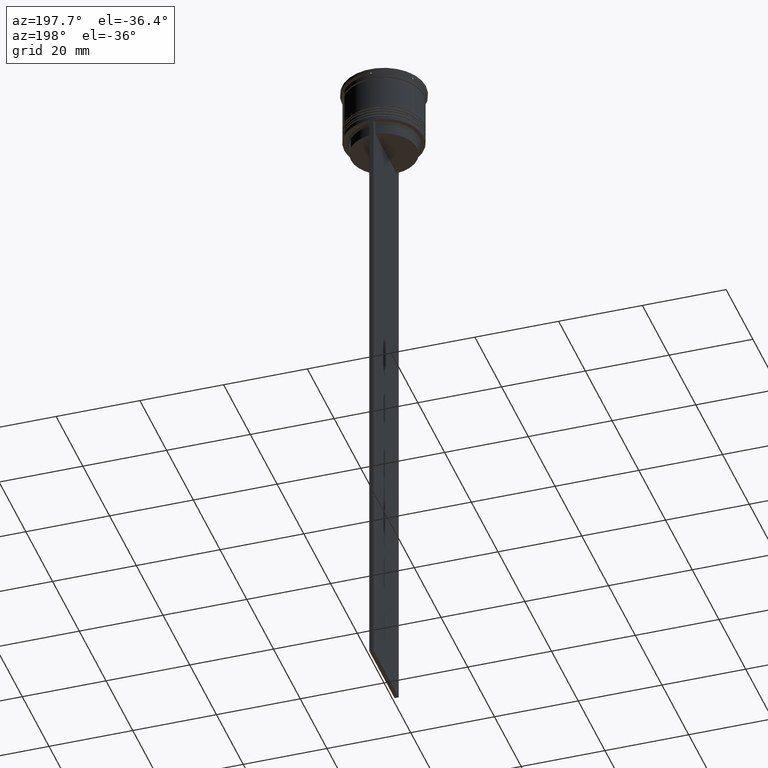
[diagram: clean part render]
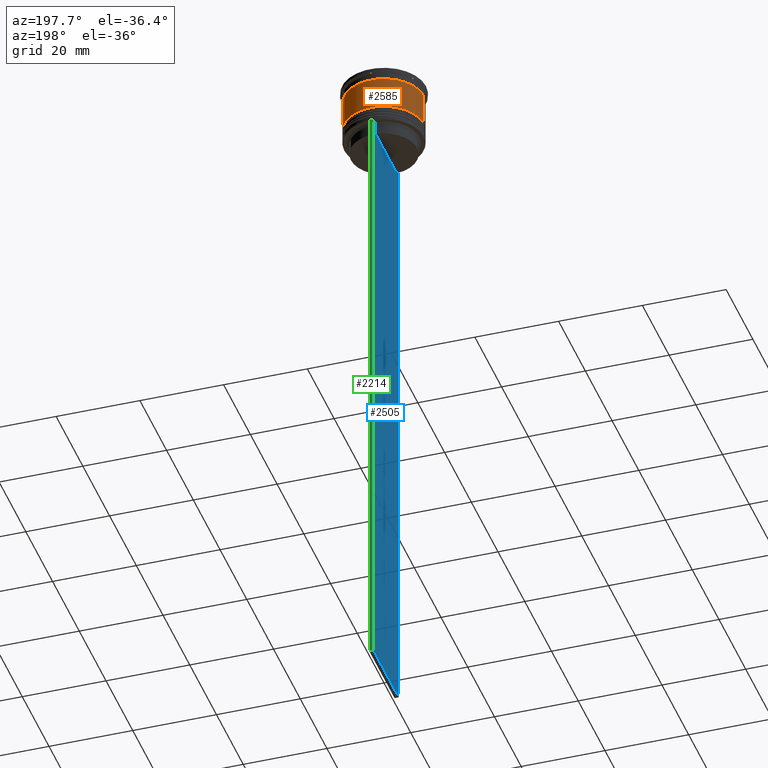
[diagram: same view with three faces highlighted in distinct colors, each labeled with its STEP entity id]
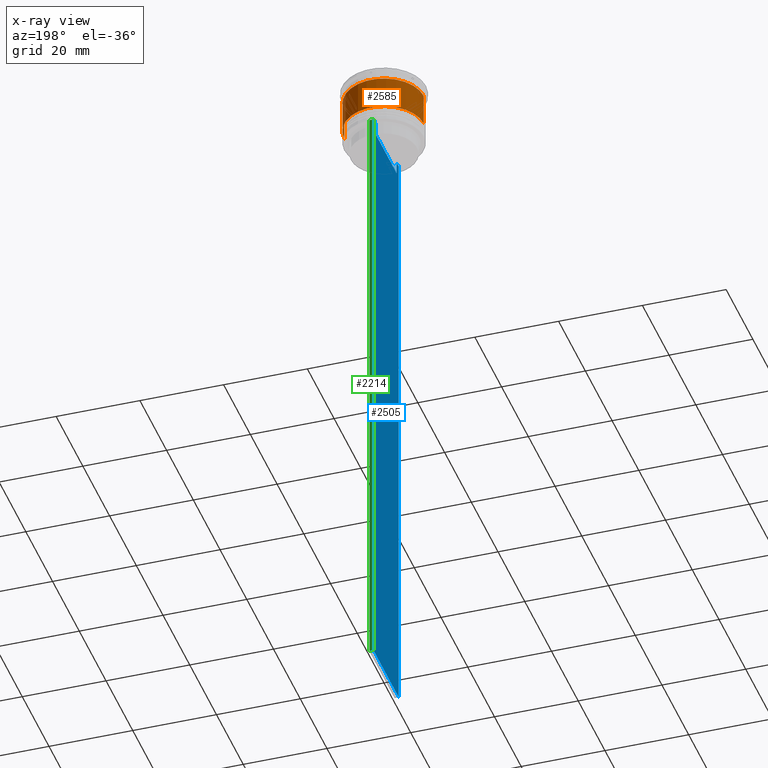
[diagram: x-ray of the same camera — body ghosted, the three highlighted faces saturated]
A machine part, auxiliary view with three faces highlighted in distinct colors.
The next image is the same camera in x-ray (body ghosted, the three faces saturated) — at least one of them is partly hidden behind the body in this view.
Their STEP definitions:

[orange] entity #2585 — the highlighted cylindrical surface (partial cylindrical patch) has radius 9.5 mm, axis along (-0, -0, 1).
#42 = DIRECTION ( 'NONE',  ( -0.000000000000000000, -0.000000000000000000, 1.000000000000000000 ) ) ;
#237 = VECTOR ( 'NONE', #1963, 1000.000000000000000 ) ;
#376 = CYLINDRICAL_SURFACE ( 'NONE', #1459, 9.500000000000000000 ) ;
#456 = AXIS2_PLACEMENT_3D ( 'NONE', #2632, #930, #1147 ) ;
#457 = ORIENTED_EDGE ( 'NONE', *, *, #1338, .F. ) ;
#519 = CARTESIAN_POINT ( 'NONE',  ( 9.500000000000001776, 0.000000000000000000, -10.50000000000000000 ) ) ;
#584 = CARTESIAN_POINT ( 'NONE',  ( -9.499999999999998224, 1.163414459189985485E-15, -2.700000000000001066 ) ) ;
#685 = LINE ( 'NONE', #1504, #2622 ) ;
#699 = CARTESIAN_POINT ( 'NONE',  ( 9.499999999999998224, 0.000000000000000000, -2.700000000000001066 ) ) ;
#775 = CIRCLE ( 'NONE', #456, 9.499999999999998224 ) ;
#795 = DIRECTION ( 'NONE',  ( -0.000000000000000000, -0.000000000000000000, 1.000000000000000000 ) ) ;
#856 = CARTESIAN_POINT ( 'NONE',  ( -9.500000000000001776, 1.163414459189985682E-15, -10.50000000000000000 ) ) ;
#908 = VERTEX_POINT ( 'NONE', #584 ) ;
#928 = EDGE_CURVE ( 'NONE', #2261, #908, #1167, .T. ) ;
#930 = DIRECTION ( 'NONE',  ( -0.000000000000000000, -0.000000000000000000, 1.000000000000000000 ) ) ;
#1085 = DIRECTION ( 'NONE',  ( 1.000000000000000000, 0.000000000000000000, 0.000000000000000000 ) ) ;
#1137 = CARTESIAN_POINT ( 'NONE',  ( -9.500000000000000000, 1.163414459189985485E-15, 0.000000000000000000 ) ) ;
#1147 = DIRECTION ( 'NONE',  ( 1.000000000000000000, 0.000000000000000000, 0.000000000000000000 ) ) ;
#1156 = ORIENTED_EDGE ( 'NONE', *, *, #1858, .T. ) ;
#1167 = LINE ( 'NONE', #1137, #237 ) ;
#1269 = CARTESIAN_POINT ( 'NONE',  ( 0.000000000000000000, 0.000000000000000000, -10.50000000000000000 ) ) ;
#1338 = EDGE_CURVE ( 'NONE', #1813, #908, #775, .T. ) ;
#1380 = DIRECTION ( 'NONE',  ( 1.000000000000000000, 0.000000000000000000, 0.000000000000000000 ) ) ;
#1459 = AXIS2_PLACEMENT_3D ( 'NONE', #2633, #795, #1380 ) ;
#1475 = ORIENTED_EDGE ( 'NONE', *, *, #1925, .F. ) ;
#1504 = CARTESIAN_POINT ( 'NONE',  ( 9.500000000000000000, 0.000000000000000000, 0.000000000000000000 ) ) ;
#1813 = VERTEX_POINT ( 'NONE', #699 ) ;
#1858 = EDGE_CURVE ( 'NONE', #2077, #2261, #2191, .T. ) ;
#1925 = EDGE_CURVE ( 'NONE', #2077, #1813, #685, .T. ) ;
#1963 = DIRECTION ( 'NONE',  ( -0.000000000000000000, -0.000000000000000000, 1.000000000000000000 ) ) ;
#2005 = ORIENTED_EDGE ( 'NONE', *, *, #928, .T. ) ;
#2077 = VERTEX_POINT ( 'NONE', #519 ) ;
#2183 = EDGE_LOOP ( 'NONE', ( #1156, #2005, #457, #1475 ) ) ;
#2191 = CIRCLE ( 'NONE', #2275, 9.500000000000001776 ) ;
#2261 = VERTEX_POINT ( 'NONE', #856 ) ;
#2275 = AXIS2_PLACEMENT_3D ( 'NONE', #1269, #42, #1085 ) ;
#2333 = DIRECTION ( 'NONE',  ( -0.000000000000000000, -0.000000000000000000, 1.000000000000000000 ) ) ;
#2410 = FACE_OUTER_BOUND ( 'NONE', #2183, .T. ) ;
#2585 = ADVANCED_FACE ( 'NONE', ( #2410 ), #376, .T. ) ;
#2622 = VECTOR ( 'NONE', #2333, 1000.000000000000000 ) ;
#2632 = CARTESIAN_POINT ( 'NONE',  ( 0.000000000000000000, 0.000000000000000000, -2.700000000000001066 ) ) ;
#2633 = CARTESIAN_POINT ( 'NONE',  ( 0.000000000000000000, 0.000000000000000000, 0.000000000000000000 ) ) ;

[blue] entity #2505 — the highlighted planar face has unit normal (-1, 0, 0).
#17 = CARTESIAN_POINT ( 'NONE',  ( -0.5000000000000000000, -8.051152795888546265, -14.33334334204685057 ) ) ;
#19 = LINE ( 'NONE', #1262, #508 ) ;
#43 = ORIENTED_EDGE ( 'NONE', *, *, #139, .F. ) ;
#49 = CARTESIAN_POINT ( 'NONE',  ( -0.5000000000000000000, -9.500000000000001776, 5.026297590440445440 ) ) ;
#61 = FACE_OUTER_BOUND ( 'NONE', #814, .T. ) ;
#97 = ORIENTED_EDGE ( 'NONE', *, *, #2335, .F. ) ;
#99 = VERTEX_POINT ( 'NONE', #2379 ) ;
#119 = DIRECTION ( 'NONE',  ( 0.000000000000000000, 0.000000000000000000, -1.000000000000000000 ) ) ;
#137 = CARTESIAN_POINT ( 'NONE',  ( -0.5000000000000000000, -7.884161337770803080, 0.000000000000000000 ) ) ;
#139 = EDGE_CURVE ( 'NONE', #1791, #286, #2392, .T. ) ;
#189 = VERTEX_POINT ( 'NONE', #1832 ) ;
#220 = DIRECTION ( 'NONE',  ( 0.000000000000000000, 0.000000000000000000, -1.000000000000000000 ) ) ;
#247 = CARTESIAN_POINT ( 'NONE',  ( -0.5000000000000000000, -7.884161337770803080, -14.50000000000000000 ) ) ;
#260 = LINE ( 'NONE', #2509, #2663 ) ;
#278 = ORIENTED_EDGE ( 'NONE', *, *, #1685, .F. ) ;
#286 = VERTEX_POINT ( 'NONE', #827 ) ;
#297 = B_SPLINE_CURVE_WITH_KNOTS ( 'NONE', 3,
 ( #313, #17, #2280, #2114 ),
 .UNSPECIFIED., .F., .F.,
 ( 4, 4 ),
 ( 0.03673372442973153046, 0.03744389749832059688 ),
 .UNSPECIFIED. ) ;
#313 = CARTESIAN_POINT ( 'NONE',  ( -0.5000000000000000000, -7.884161337770803080, -14.50000000000000000 ) ) ;
#389 = CARTESIAN_POINT ( 'NONE',  ( -0.5000000000000000000, 7.899999999999994138, -17.00000000000000000 ) ) ;
#392 = CARTESIAN_POINT ( 'NONE',  ( -0.5000000000000000000, -9.386692708297204035, -14.00000000000000178 ) ) ;
#398 = EDGE_CURVE ( 'NONE', #438, #435, #297, .T. ) ;
#429 = LINE ( 'NONE', #389, #2658 ) ;
#432 = CARTESIAN_POINT ( 'NONE',  ( -0.5000000000000000000, 8.218133718559618828, -14.16667606394327983 ) ) ;
#435 = VERTEX_POINT ( 'NONE', #1128 ) ;
#438 = VERTEX_POINT ( 'NONE', #247 ) ;
#508 = VECTOR ( 'NONE', #2087, 1000.000000000000000 ) ;
#537 = CARTESIAN_POINT ( 'NONE',  ( -0.5000000000000000000, -9.500000000000001776, -14.00000000000000178 ) ) ;
#580 = LINE ( 'NONE', #1397, #2187 ) ;
#604 = VERTEX_POINT ( 'NONE', #1665 ) ;
#658 = ORIENTED_EDGE ( 'NONE', *, *, #2208, .F. ) ;
#679 = VECTOR ( 'NONE', #119, 1000.000000000000000 ) ;
#695 = DIRECTION ( 'NONE',  ( -1.000000000000000000, 0.000000000000000000, 0.000000000000000000 ) ) ;
#723 = ORIENTED_EDGE ( 'NONE', *, *, #1406, .F. ) ;
#737 = CARTESIAN_POINT ( 'NONE',  ( -0.5000000000000000000, -9.500000000000001776, 5.026297590440445440 ) ) ;
#766 = VECTOR ( 'NONE', #1335, 1000.000000000000000 ) ;
#813 = VECTOR ( 'NONE', #962, 1000.000000000000000 ) ;
#814 = EDGE_LOOP ( 'NONE', ( #97, #2156, #43, #2279, #278, #2478, #658, #2308, #2081, #2093, #723, #844 ) ) ;
#822 = CARTESIAN_POINT ( 'NONE',  ( -0.5000000000000000000, 7.884161337770803080, -14.50000000000000000 ) ) ;
#827 = CARTESIAN_POINT ( 'NONE',  ( -0.5000000000000000000, 9.386692708297204035, -14.00000000000000178 ) ) ;
#844 = ORIENTED_EDGE ( 'NONE', *, *, #1519, .F. ) ;
#944 = VECTOR ( 'NONE', #1168, 1000.000000000000000 ) ;
#962 = DIRECTION ( 'NONE',  ( -0.000000000000000000, -0.000000000000000000, 1.000000000000000000 ) ) ;
#971 = CARTESIAN_POINT ( 'NONE',  ( -0.5000000000000000000, 8.385105843100605583, -14.00000000000000178 ) ) ;
#978 = EDGE_CURVE ( 'NONE', #189, #438, #2397, .T. ) ;
#1020 = VERTEX_POINT ( 'NONE', #392 ) ;
#1128 = CARTESIAN_POINT ( 'NONE',  ( -0.5000000000000000000, -8.385105843100605583, -14.00000000000000178 ) ) ;
#1149 = DIRECTION ( 'NONE',  ( 0.000000000000000000, 0.000000000000000000, -1.000000000000000000 ) ) ;
#1164 = CARTESIAN_POINT ( 'NONE',  ( -0.5000000000000000000, 9.499999999999998224, 5.026297590440445440 ) ) ;
#1168 = DIRECTION ( 'NONE',  ( 0.000000000000000000, -1.000000000000000000, 0.000000000000000000 ) ) ;
#1255 = CARTESIAN_POINT ( 'NONE',  ( -0.5000000000000000000, 8.051152811434374001, -14.33334332653219079 ) ) ;
#1262 = CARTESIAN_POINT ( 'NONE',  ( -0.5000000000000000000, -9.500000000000001776, -163.9999999999999716 ) ) ;
#1331 = VERTEX_POINT ( 'NONE', #971 ) ;
#1332 = AXIS2_PLACEMENT_3D ( 'NONE', #49, #695, #1511 ) ;
#1335 = DIRECTION ( 'NONE',  ( 0.000000000000000000, -1.000000000000000000, 0.000000000000000000 ) ) ;
#1342 = EDGE_CURVE ( 'NONE', #99, #604, #2606, .T. ) ;
#1397 = CARTESIAN_POINT ( 'NONE',  ( -0.5000000000000000000, 7.884161337770803080, 0.000000000000000000 ) ) ;
#1404 = LINE ( 'NONE', #2033, #944 ) ;
#1406 = EDGE_CURVE ( 'NONE', #1721, #189, #429, .T. ) ;
#1511 = DIRECTION ( 'NONE',  ( 0.000000000000000000, 0.000000000000000000, 1.000000000000000000 ) ) ;
#1514 = LINE ( 'NONE', #2572, #1673 ) ;
#1519 = EDGE_CURVE ( 'NONE', #1907, #1721, #580, .T. ) ;
#1542 = CARTESIAN_POINT ( 'NONE',  ( -0.5000000000000000000, 9.499999999999998224, -163.9999999999999716 ) ) ;
#1580 = LINE ( 'NONE', #1164, #1720 ) ;
#1615 = EDGE_CURVE ( 'NONE', #435, #1020, #260, .T. ) ;
#1665 = CARTESIAN_POINT ( 'NONE',  ( -0.5000000000000000000, -9.500000000000001776, -163.9999999999999716 ) ) ;
#1673 = VECTOR ( 'NONE', #1762, 1000.000000000000000 ) ;
#1685 = EDGE_CURVE ( 'NONE', #604, #2016, #19, .T. ) ;
#1718 = PLANE ( 'NONE',  #1332 ) ;
#1720 = VECTOR ( 'NONE', #1149, 1000.000000000000000 ) ;
#1721 = VERTEX_POINT ( 'NONE', #1987 ) ;
#1762 = DIRECTION ( 'NONE',  ( 0.000000000000000000, -1.000000000000000000, 0.000000000000000000 ) ) ;
#1768 = CARTESIAN_POINT ( 'NONE',  ( -0.5000000000000000000, 9.499999999999994671, -14.00000000000000178 ) ) ;
#1791 = VERTEX_POINT ( 'NONE', #1768 ) ;
#1832 = CARTESIAN_POINT ( 'NONE',  ( -0.5000000000000000000, -7.884161337770803080, -17.00000000000000000 ) ) ;
#1907 = VERTEX_POINT ( 'NONE', #1954 ) ;
#1932 = B_SPLINE_CURVE_WITH_KNOTS ( 'NONE', 3,
 ( #2662, #432, #1255, #822 ),
 .UNSPECIFIED., .F., .F.,
 ( 4, 4 ),
 ( 0.01426761478740281447, 0.01497538974438914448 ),
 .UNSPECIFIED. ) ;
#1954 = CARTESIAN_POINT ( 'NONE',  ( -0.5000000000000000000, 7.884161337770803080, -14.50000000000000000 ) ) ;
#1970 = EDGE_CURVE ( 'NONE', #286, #1331, #1514, .T. ) ;
#1987 = CARTESIAN_POINT ( 'NONE',  ( -0.5000000000000000000, 7.884161337770803080, -17.00000000000000000 ) ) ;
#2016 = VERTEX_POINT ( 'NONE', #1542 ) ;
#2033 = CARTESIAN_POINT ( 'NONE',  ( -0.5000000000000000000, -9.500000000000001776, -14.00000000000000178 ) ) ;
#2081 = ORIENTED_EDGE ( 'NONE', *, *, #398, .F. ) ;
#2087 = DIRECTION ( 'NONE',  ( 0.000000000000000000, 1.000000000000000000, 0.000000000000000000 ) ) ;
#2093 = ORIENTED_EDGE ( 'NONE', *, *, #978, .F. ) ;
#2114 = CARTESIAN_POINT ( 'NONE',  ( -0.5000000000000000000, -8.385105843100605583, -14.00000000000000178 ) ) ;
#2156 = ORIENTED_EDGE ( 'NONE', *, *, #1970, .F. ) ;
#2187 = VECTOR ( 'NONE', #220, 1000.000000000000000 ) ;
#2208 = EDGE_CURVE ( 'NONE', #1020, #99, #1404, .T. ) ;
#2279 = ORIENTED_EDGE ( 'NONE', *, *, #2568, .T. ) ;
#2280 = CARTESIAN_POINT ( 'NONE',  ( -0.5000000000000000000, -8.218133703942523738, -14.16667607853445787 ) ) ;
#2308 = ORIENTED_EDGE ( 'NONE', *, *, #1615, .F. ) ;
#2335 = EDGE_CURVE ( 'NONE', #1331, #1907, #1932, .T. ) ;
#2379 = CARTESIAN_POINT ( 'NONE',  ( -0.5000000000000000000, -9.500000000000001776, -14.00000000000000178 ) ) ;
#2392 = LINE ( 'NONE', #537, #766 ) ;
#2397 = LINE ( 'NONE', #137, #813 ) ;
#2478 = ORIENTED_EDGE ( 'NONE', *, *, #1342, .F. ) ;
#2497 = DIRECTION ( 'NONE',  ( 0.000000000000000000, -1.000000000000000000, 0.000000000000000000 ) ) ;
#2505 = ADVANCED_FACE ( 'NONE', ( #61 ), #1718, .T. ) ;
#2509 = CARTESIAN_POINT ( 'NONE',  ( -0.5000000000000000000, -9.500000000000001776, -14.00000000000000178 ) ) ;
#2568 = EDGE_CURVE ( 'NONE', #1791, #2016, #1580, .T. ) ;
#2572 = CARTESIAN_POINT ( 'NONE',  ( -0.5000000000000000000, -9.500000000000001776, -14.00000000000000178 ) ) ;
#2606 = LINE ( 'NONE', #737, #679 ) ;
#2658 = VECTOR ( 'NONE', #2670, 1000.000000000000000 ) ;
#2662 = CARTESIAN_POINT ( 'NONE',  ( -0.5000000000000000000, 8.385105843100605583, -14.00000000000000178 ) ) ;
#2663 = VECTOR ( 'NONE', #2497, 1000.000000000000000 ) ;
#2670 = DIRECTION ( 'NONE',  ( 0.000000000000000000, -1.000000000000000000, 0.000000000000000000 ) ) ;

[green] entity #2214 — the highlighted planar face has unit normal (0, -1, -0).
#52 = CARTESIAN_POINT ( 'NONE',  ( 0.5000000000000000000, 9.499999999999998224, -14.00000000000000178 ) ) ;
#150 = DIRECTION ( 'NONE',  ( 1.000000000000000000, 0.000000000000000000, 0.000000000000000000 ) ) ;
#175 = DIRECTION ( 'NONE',  ( 0.000000000000000000, -1.000000000000000000, -0.000000000000000000 ) ) ;
#386 = ORIENTED_EDGE ( 'NONE', *, *, #2184, .T. ) ;
#416 = VECTOR ( 'NONE', #2347, 1000.000000000000000 ) ;
#419 = DIRECTION ( 'NONE',  ( -1.000000000000000000, 0.000000000000000000, 0.000000000000000000 ) ) ;
#546 = ORIENTED_EDGE ( 'NONE', *, *, #1571, .T. ) ;
#586 = LINE ( 'NONE', #993, #1589 ) ;
#787 = PLANE ( 'NONE',  #2494 ) ;
#830 = VERTEX_POINT ( 'NONE', #52 ) ;
#935 = VERTEX_POINT ( 'NONE', #936 ) ;
#936 = CARTESIAN_POINT ( 'NONE',  ( 0.5000000000000000000, 9.499999999999998224, -163.9999999999999716 ) ) ;
#993 = CARTESIAN_POINT ( 'NONE',  ( 0.5000000000000000000, 9.499999999999998224, -14.00000000000000178 ) ) ;
#1149 = DIRECTION ( 'NONE',  ( 0.000000000000000000, 0.000000000000000000, -1.000000000000000000 ) ) ;
#1164 = CARTESIAN_POINT ( 'NONE',  ( -0.5000000000000000000, 9.499999999999998224, 5.026297590440445440 ) ) ;
#1216 = CARTESIAN_POINT ( 'NONE',  ( 0.5000000000000000000, 9.499999999999998224, -163.9999999999999716 ) ) ;
#1465 = CARTESIAN_POINT ( 'NONE',  ( 0.5000000000000000000, 9.499999999999998224, 5.026297590440445440 ) ) ;
#1542 = CARTESIAN_POINT ( 'NONE',  ( -0.5000000000000000000, 9.499999999999998224, -163.9999999999999716 ) ) ;
#1567 = FACE_OUTER_BOUND ( 'NONE', #1869, .T. ) ;
#1571 = EDGE_CURVE ( 'NONE', #830, #935, #2306, .T. ) ;
#1580 = LINE ( 'NONE', #1164, #1720 ) ;
#1589 = VECTOR ( 'NONE', #150, 1000.000000000000000 ) ;
#1596 = CARTESIAN_POINT ( 'NONE',  ( 0.5000000000000000000, 9.499999999999998224, 5.026297590440445440 ) ) ;
#1605 = ORIENTED_EDGE ( 'NONE', *, *, #2320, .T. ) ;
#1712 = ORIENTED_EDGE ( 'NONE', *, *, #2568, .F. ) ;
#1720 = VECTOR ( 'NONE', #1149, 1000.000000000000000 ) ;
#1768 = CARTESIAN_POINT ( 'NONE',  ( -0.5000000000000000000, 9.499999999999994671, -14.00000000000000178 ) ) ;
#1791 = VERTEX_POINT ( 'NONE', #1768 ) ;
#1826 = DIRECTION ( 'NONE',  ( 0.000000000000000000, 0.000000000000000000, -1.000000000000000000 ) ) ;
#1869 = EDGE_LOOP ( 'NONE', ( #1712, #386, #546, #1605 ) ) ;
#2016 = VERTEX_POINT ( 'NONE', #1542 ) ;
#2091 = LINE ( 'NONE', #1216, #2457 ) ;
#2184 = EDGE_CURVE ( 'NONE', #1791, #830, #586, .T. ) ;
#2214 = ADVANCED_FACE ( 'NONE', ( #1567 ), #787, .F. ) ;
#2306 = LINE ( 'NONE', #1465, #416 ) ;
#2320 = EDGE_CURVE ( 'NONE', #935, #2016, #2091, .T. ) ;
#2347 = DIRECTION ( 'NONE',  ( 0.000000000000000000, 0.000000000000000000, -1.000000000000000000 ) ) ;
#2457 = VECTOR ( 'NONE', #419, 1000.000000000000000 ) ;
#2494 = AXIS2_PLACEMENT_3D ( 'NONE', #1596, #175, #1826 ) ;
#2568 = EDGE_CURVE ( 'NONE', #1791, #2016, #1580, .T. ) ;